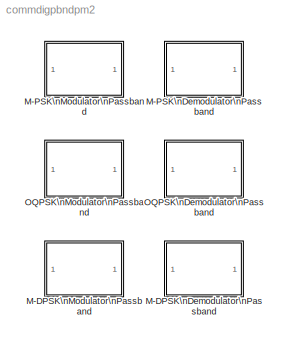
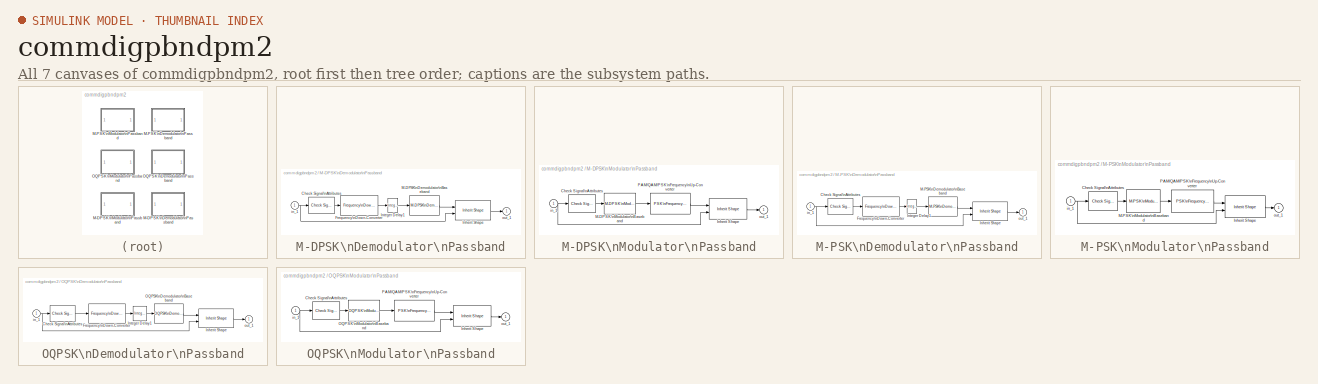
[diagram: thumbnail index - all 7 canvases of the model, root first then tree order]
MODEL commdigpbndpm2
KIND library
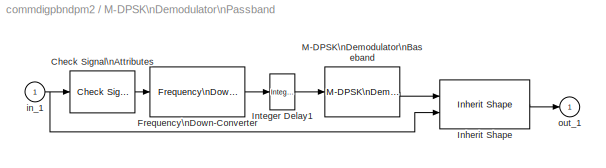
BLOCK [SubSystem] M-DPSK\nDemodulator\nPassband
  MaskCallbackString = |commblkpbndpskmod(gcb,'InType');||||||
  MaskDescription = Demodulate the input signal using the differential phase shift keying method.\n\nThe input signal must be a sample-based scalar. In case of bit output, the width of the output is the number of bits per symbol. The symbols can be either binary-demapped or Gray-demapped into bits.
  MaskDisplay = plot(0,0,100,100,[5+1.5*[[0:.8:10] [10:1.6:20] [20:.8:30]] 50 50 50 50+15*[0 1 1 2 2 3]],[85+10*[sin([0:.8:10]*pi*2/5) sin([10:1.6:20]*pi/5) sin([20:.8:30]*pi*2/5)] 85 99 75 85+8*[1 1 -1 -1 1 1]]);\ndisp('M-DPSK')
  MaskEnableString = on,on,off,on,on,on,on,on
  MaskHelp = helpview(commbhelp)
  MaskIconFrame = on
  MaskIconOpaque = on
  MaskIconRotate = none
  MaskIconUnits = autoscale
  MaskInitialization = commblkdyampmdemod('M-DPSK Demodulator Baseband','update');\ncommblkpbndpskmod(gcb,'init');\n
  MaskPromptString = M-ary number:|Output type:|Constellation ordering:|Symbol periodl (s):|Baseband samples per symbol:|Carrier frequency (Hz):|Carrier initial phase (rad):|Input sample time (s):
  MaskSelfModifiable = on
  MaskStyleString = edit,popup(Bit|Integer),popup(Binary|Gray),edit,edit,edit,edit,edit
  MaskToolTipString = on,on,on,on,on,on,on,on
  MaskTunableValueString = off,off,off,off,off,off,off,off
  MaskType = M-DPSK Demodulator Passband
  MaskValueString = 8|Integer|Binary|1/100|1|3000|pi/8|1/8000
  MaskVarAliasString = ,,,,,,,
  MaskVariables = M=@1;OutType=@2;Dec=@3;td=@4;numSamp=@5;Fc=@6;Ph=@7;InSamp=@8;
  MaskVisibilityString = on,on,on,on,on,on,on,on
  Ports = [1, 1]
  TreatAsAtomicUnit = off
BLOCK [Reference] M-DPSK\nDemodulator\nPassband/Check Signal\nAttributes  REF=dspsigattribs/Check Signal\nAttributes
  Complexity = Ignore
  DatatypeCheckMethod = Ignore
  DatatypeGeneral = Boolean
  Dimensions = 1-D
  DimsCheckMethod = Ignore
  DtypeFixedSpecific = Any fixed-point
  DtypeFloatSpecific = Any floating-point
  DtypeIntSpecific = Any integer
  Frame = Frame-based
  Ports = [1, 1]
  SampleMode = Ignore
  SigAttribCheckMethod = Matches attributes exactly
  SourceBlock = dspsigattribs/Check Signal\nAttributes
  SourceType = Check Signal Attributes
BLOCK [Reference] M-DPSK\nDemodulator\nPassband/Frequency\nDown-Converter  REF=commblksprivate/Frequency\nDown-Converter
  Fc = Fc
  Ph = Ph
  Ports = [1, 1]
  SourceBlock = commblksprivate/Frequency\nDown-Converter
  SourceType = Frequency down-converter
  Tin = InSamp
  Tout = td/numSamp
BLOCK [Reference] M-DPSK\nDemodulator\nPassband/Inherit Shape  REF=commblksprivate/Inherit Shape
  Ports = [2, 1]
  SourceBlock = commblksprivate/Inherit Shape
  SourceType = Inherit Shape
BLOCK [Reference] M-DPSK\nDemodulator\nPassband/Integer Delay1  REF=dspsigops/Integer Delay
  Ports = [1, 1]
  SourceBlock = dspsigops/Integer Delay
  SourceType = Integer Delay
  delay = numSamp-1
  ic = 0
BLOCK [Reference] M-DPSK\nDemodulator\nPassband/M-DPSK\nDemodulator\nBaseband  REF=commdigbbndpm2/M-DPSK\nDemodulator\nBaseband
  Dec = Binary
  M = M
  OutType = Integer
  Ph = 0
  Ports = [1, 1]
  SourceBlock = commdigbbndpm2/M-DPSK\nDemodulator\nBaseband
  SourceType = M-DPSK Demodulator Baseband
  numSamp = numSamp
BLOCK [Inport] M-DPSK\nDemodulator\nPassband/in_1
BLOCK [Outport] M-DPSK\nDemodulator\nPassband/out_1
  InitialOutput = 0
BLOCK [SubSystem] M-DPSK\nModulator\nPassband
  MaskCallbackString = |commblkpbndpskmod(gcb,'InType');||||||
  MaskDescription = Modulate the input signal using the differential phase shift keying method.\n\nThe input signal must be sample-based. In case of integer input, the input must be a scalar. In case of bit input, the width of the input must equal the number of bits per symbol. The bits can be either binary-mapped or Gray-mapped into symbols.\n\nThe input sample time must equal the symbol period.
  MaskDisplay = plot(0,0,100,100,[5+15*[0 1 1 2 2 3] 50 50 50 50+1.5*[[0:.8:10] [10:1.6:20] [20:.8:30]]],[85+8*[1 1 -1 -1 1 1] 85 99 75 85+10*[sin([0:.8:10]*pi*2/5) sin([10:1.6:20]*pi/5) sin([20:.8:30]*pi*2/5)]]);\ndisp('M-DPSK')
  MaskEnableString = on,on,off,on,on,on,on,on
  MaskHelp = helpview(commbhelp)
  MaskIconFrame = on
  MaskIconOpaque = on
  MaskIconRotate = none
  MaskIconUnits = autoscale
  MaskInitialization = commblkdyampmmod('M-DPSK Modulator Baseband','update');\ncommblkpbndpskmod(gcb,'init');\n
  MaskPromptString = M-ary number:|Input type:|Constellation ordering:|Symbol period (s):|Baseband samples per symbol:|Carrier frequency (Hz):|Carrier initial phase (rad):|Output sample time (s):
  MaskSelfModifiable = on
  MaskStyleString = edit,popup(Bit|Integer),popup(Binary|Gray),edit,edit,edit,edit,edit
  MaskToolTipString = on,on,on,on,on,on,on,on
  MaskTunableValueString = off,off,off,off,off,off,off,off
  MaskType = M-DPSK Modulator Passband
  MaskValueString = 8|Integer|Binary|1/100|1|3000|pi/8|1/8000
  MaskVarAliasString = ,,,,,,,
  MaskVariables = M=@1;InType=@2;Enc=@3;td=@4;numSamp=@5;Fc=@6;Ph=@7;OutSamp=@8;
  MaskVisibilityString = on,on,on,on,on,on,on,on
  Ports = [1, 1]
  TreatAsAtomicUnit = off
BLOCK [Reference] M-DPSK\nModulator\nPassband/Check Signal\nAttributes  REF=dspsigattribs/Check Signal\nAttributes
  Complexity = Ignore
  DatatypeCheckMethod = Ignore
  DatatypeGeneral = Boolean
  Dimensions = 1-D
  DimsCheckMethod = Ignore
  DtypeFixedSpecific = Any fixed-point
  DtypeFloatSpecific = Any floating-point
  DtypeIntSpecific = Any integer
  Frame = Frame-based
  Ports = [1, 1]
  SampleMode = Ignore
  SigAttribCheckMethod = Matches attributes exactly
  SourceBlock = dspsigattribs/Check Signal\nAttributes
  SourceType = Check Signal Attributes
BLOCK [Reference] M-DPSK\nModulator\nPassband/Inherit Shape  REF=commblksprivate/Inherit Shape
  Ports = [2, 1]
  SourceBlock = commblksprivate/Inherit Shape
  SourceType = Inherit Shape
BLOCK [Reference] M-DPSK\nModulator\nPassband/M-DPSK\nModulator\nBaseband  REF=commdigbbndpm2/M-DPSK\nModulator\nBaseband
  Enc = Binary
  InType = Integer
  M = M
  Ph = 0
  Ports = [1, 1]
  SourceBlock = commdigbbndpm2/M-DPSK\nModulator\nBaseband
  SourceType = M-DPSK Modulator Baseband
  numSamp = numSamp
BLOCK [Reference] M-DPSK\nModulator\nPassband/PAM//QAM//PSK\nFrequency\nUp-Converter  REF=commblksprivate/PAM//QAM//PSK\nFrequency\nUp-Converter
  Fc = Fc
  Ph = Ph
  Ports = [1, 1]
  SourceBlock = commblksprivate/PAM//QAM//PSK\nFrequency\nUp-Converter
  SourceType = PAM/QAM/PSK Frequency Up-Converter
  Tin = td/numSamp
  Tout = OutSamp
BLOCK [Inport] M-DPSK\nModulator\nPassband/in_1
BLOCK [Outport] M-DPSK\nModulator\nPassband/out_1
  InitialOutput = 0
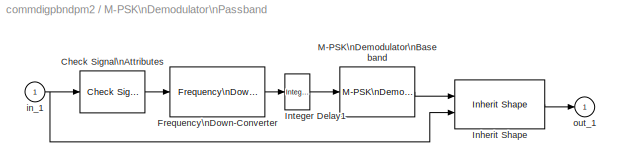
BLOCK [SubSystem] M-PSK\nDemodulator\nPassband
  MaskCallbackString = |commblkpbndpskmod(gcb,'InType');||||||
  MaskDescription = Demodulate the input signal using the phase shift keying method.\n\nThe input signal must be a sample-based scalar. In case of bit output, the width of the output is the number of bits per symbol. The symbols can be either binary-demapped or Gray-demapped into bits.
  MaskDisplay = plot(0,0,100,100,[5+1.5*[[0:.8:10] [10:1.6:20] [20:.8:30]] 50 50 50 50+15*[0 1 1 2 2 3]],[85+10*[sin([0:.8:10]*pi*2/5) sin([10:1.6:20]*pi/5) sin([20:.8:30]*pi*2/5)] 85 99 75 85+8*[1 1 -1 -1 1 1]]);\ndisp('M-PSK')
  MaskEnableString = on,on,off,on,on,on,on,on
  MaskHelp = helpview(commbhelp)
  MaskIconFrame = on
  MaskIconOpaque = on
  MaskIconRotate = none
  MaskIconUnits = autoscale
  MaskInitialization = commblkdyampmdemod('M-PSK Demodulator Baseband','update');\ncommblkpbndpskmod(gcb,'init');\n
  MaskPromptString = M-ary number:|Output type:|Constellation ordering:|Symbol period (s):|Baseband samples per symbol:|Carrier frequency (Hz):|Carrier initial phase (rad):|Input sample time (s):
  MaskSelfModifiable = on
  MaskStyleString = edit,popup(Bit|Integer),popup(Binary|Gray),edit,edit,edit,edit,edit
  MaskToolTipString = on,on,on,on,on,on,on,on
  MaskTunableValueString = off,off,off,off,off,off,off,off
  MaskType = M-PSK Demodulator Passband
  MaskValueString = 8|Integer|Binary|1/100|1|3000|pi/8|1/8000
  MaskVarAliasString = ,,,,,,,
  MaskVariables = M=@1;OutType=@2;Dec=@3;td=@4;numSamp=@5;Fc=@6;Ph=@7;InSamp=@8;
  MaskVisibilityString = on,on,on,on,on,on,on,on
  Ports = [1, 1]
  TreatAsAtomicUnit = off
BLOCK [Reference] M-PSK\nDemodulator\nPassband/Check Signal\nAttributes  REF=dspsigattribs/Check Signal\nAttributes
  Complexity = Ignore
  DatatypeCheckMethod = Ignore
  DatatypeGeneral = Boolean
  Dimensions = 1-D
  DimsCheckMethod = Ignore
  DtypeFixedSpecific = Any fixed-point
  DtypeFloatSpecific = Any floating-point
  DtypeIntSpecific = Any integer
  Frame = Frame-based
  Ports = [1, 1]
  SampleMode = Ignore
  SigAttribCheckMethod = Matches attributes exactly
  SourceBlock = dspsigattribs/Check Signal\nAttributes
  SourceType = Check Signal Attributes
BLOCK [Reference] M-PSK\nDemodulator\nPassband/Frequency\nDown-Converter  REF=commblksprivate/Frequency\nDown-Converter
  Fc = Fc
  Ph = Ph
  Ports = [1, 1]
  SourceBlock = commblksprivate/Frequency\nDown-Converter
  SourceType = Frequency down-converter
  Tin = InSamp
  Tout = td/numSamp
BLOCK [Reference] M-PSK\nDemodulator\nPassband/Inherit Shape  REF=commblksprivate/Inherit Shape
  Ports = [2, 1]
  SourceBlock = commblksprivate/Inherit Shape
  SourceType = Inherit Shape
BLOCK [Reference] M-PSK\nDemodulator\nPassband/Integer Delay1  REF=dspsigops/Integer Delay
  Ports = [1, 1]
  SourceBlock = dspsigops/Integer Delay
  SourceType = Integer Delay
  delay = numSamp-1
  ic = 0
BLOCK [Reference] M-PSK\nDemodulator\nPassband/M-PSK\nDemodulator\nBaseband  REF=commdigbbndpm2/M-PSK\nDemodulator\nBaseband
  Dec = Binary
  M = M
  OutType = Integer
  Ph = 0
  Ports = [1, 1]
  SourceBlock = commdigbbndpm2/M-PSK\nDemodulator\nBaseband
  SourceType = M-PSK Demodulator Baseband
  numSamp = numSamp
BLOCK [Inport] M-PSK\nDemodulator\nPassband/in_1
BLOCK [Outport] M-PSK\nDemodulator\nPassband/out_1
  InitialOutput = 0
BLOCK [SubSystem] M-PSK\nModulator\nPassband
  MaskCallbackString = |commblkpbndpskmod(gcb,'InType');||||||
  MaskDescription = Modulate the input signal using the phase shift keying method. \n\nThe input signal must be sample-based. In case of integer input, the input must be a scalar. In case of bit input, the width of the input must equal the number of bits per symbol. The bits can be either binary-mapped or Gray-mapped into symbols.\n\nThe input sample time must equal the symbol period.
  MaskDisplay = plot(0,0,100,100,[5+15*[0 1 1 2 2 3] 50 50 50 50+1.5*[[0:.8:10] [10:1.6:20] [20:.8:30]]],[85+8*[1 1 -1 -1 1 1] 85 99 75 85+10*[sin([0:.8:10]*pi*2/5) sin([10:1.6:20]*pi/5) sin([20:.8:30]*pi*2/5)]]);\ndisp('M-PSK')
  MaskEnableString = on,on,off,on,on,on,on,on
  MaskHelp = helpview(commbhelp)
  MaskIconFrame = on
  MaskIconOpaque = on
  MaskIconRotate = none
  MaskIconUnits = autoscale
  MaskInitialization = commblkdyampmmod('M-PSK Modulator Baseband','update');\ncommblkpbndpskmod(gcb,'init');\n
  MaskPromptString = M-ary number:|Input type:|Constellation ordering:|Symbol period (s):|Baseband samples per symbol:|Carrier frequency (Hz):|Carrier initial phase (rad):|Output sample time (s):
  MaskSelfModifiable = on
  MaskStyleString = edit,popup(Bit|Integer),popup(Binary|Gray),edit,edit,edit,edit,edit
  MaskToolTipString = on,on,on,on,on,on,on,on
  MaskTunableValueString = off,off,off,off,off,off,off,off
  MaskType = M-PSK Modulator Passband
  MaskValueString = 8|Integer|Binary|1/100|1|3000|pi/8|1/8000
  MaskVarAliasString = ,,,,,,,
  MaskVariables = M=@1;InType=@2;Enc=@3;td=@4;numSamp=@5;Fc=@6;Ph=@7;OutSamp=@8;
  MaskVisibilityString = on,on,on,on,on,on,on,on
  Ports = [1, 1]
  TreatAsAtomicUnit = off
BLOCK [Reference] M-PSK\nModulator\nPassband/Check Signal\nAttributes  REF=dspsigattribs/Check Signal\nAttributes
  Complexity = Ignore
  DatatypeCheckMethod = Ignore
  DatatypeGeneral = Boolean
  Dimensions = 1-D
  DimsCheckMethod = Ignore
  DtypeFixedSpecific = Any fixed-point
  DtypeFloatSpecific = Any floating-point
  DtypeIntSpecific = Any integer
  Frame = Frame-based
  Ports = [1, 1]
  SampleMode = Ignore
  SigAttribCheckMethod = Matches attributes exactly
  SourceBlock = dspsigattribs/Check Signal\nAttributes
  SourceType = Check Signal Attributes
BLOCK [Reference] M-PSK\nModulator\nPassband/Inherit Shape  REF=commblksprivate/Inherit Shape
  Ports = [2, 1]
  SourceBlock = commblksprivate/Inherit Shape
  SourceType = Inherit Shape
BLOCK [Reference] M-PSK\nModulator\nPassband/M-PSK\nModulator\nBaseband  REF=commdigbbndpm2/M-PSK\nModulator\nBaseband
  Enc = Binary
  InType = Integer
  M = M
  Ph = 0
  Ports = [1, 1]
  SourceBlock = commdigbbndpm2/M-PSK\nModulator\nBaseband
  SourceType = M-PSK Modulator Baseband
  numSamp = numSamp
BLOCK [Reference] M-PSK\nModulator\nPassband/PAM//QAM//PSK\nFrequency\nUp-Converter  REF=commblksprivate/PAM//QAM//PSK\nFrequency\nUp-Converter
  Fc = Fc
  Ph = Ph
  Ports = [1, 1]
  SourceBlock = commblksprivate/PAM//QAM//PSK\nFrequency\nUp-Converter
  SourceType = PAM/QAM/PSK Frequency Up-Converter
  Tin = td/numSamp
  Tout = OutSamp
BLOCK [Inport] M-PSK\nModulator\nPassband/in_1
BLOCK [Outport] M-PSK\nModulator\nPassband/out_1
  InitialOutput = 0
BLOCK [SubSystem] OQPSK\nDemodulator\nPassband
  MaskCallbackString = |||||
  MaskDescription = Demodulate an offset quadrature phase shift keying modulated signal.\n\nThe input signal must be a sample-based scalar. In case of bit output, the width of the output is two.
  MaskDisplay = plot(0,0,100,100,[5+1.5*[[0:.8:10] [10:1.6:20] [20:.8:30]] 50 50 50 50+15*[0 1 1 2 2 3]],[85+10*[sin([0:.8:10]*pi*2/5) sin([10:1.6:20]*pi/5) sin([20:.8:30]*pi*2/5)] 85 99 75 85+8*[1 1 -1 -1 1 1]]);\ndisp('OQPSK')
  MaskEnableString = on,on,on,on,on,on
  MaskHelp = helpview(commbhelp)
  MaskIconFrame = on
  MaskIconOpaque = on
  MaskIconRotate = none
  MaskIconUnits = autoscale
  MaskInitialization = commblkdyampmdemod('OQPSK Demodulator Baseband','update');\n
  MaskPromptString = Output type:|Symbol period (s):|Baseband samples per symbol:|Carrier frequency (Hz):|Carrier initial phase (rad):|Input sample time (s):
  MaskSelfModifiable = on
  MaskStyleString = popup(Bit|Integer),edit,edit,edit,edit,edit
  MaskToolTipString = on,on,on,on,on,on
  MaskTunableValueString = on,on,on,on,on,on
  MaskType = OQPSK Demodulator Passband
  MaskValueString = Integer|1/100|7|3000|0|1/10000
  MaskVarAliasString = ,,,,,
  MaskVariables = OutType=@1;td=@2;numSamp=@3;Fc=@4;Ph=@5;InSamp=@6;
  MaskVisibilityString = on,on,on,on,on,on
  Ports = [1, 1]
  TreatAsAtomicUnit = off
BLOCK [Reference] OQPSK\nDemodulator\nPassband/Check Signal\nAttributes  REF=dspsigattribs/Check Signal\nAttributes
  Complexity = Ignore
  DatatypeCheckMethod = Ignore
  DatatypeGeneral = Boolean
  Dimensions = 1-D
  DimsCheckMethod = Ignore
  DtypeFixedSpecific = Any fixed-point
  DtypeFloatSpecific = Any floating-point
  DtypeIntSpecific = Any integer
  Frame = Frame-based
  Ports = [1, 1]
  SampleMode = Ignore
  SigAttribCheckMethod = Matches attributes exactly
  SourceBlock = dspsigattribs/Check Signal\nAttributes
  SourceType = Check Signal Attributes
BLOCK [Reference] OQPSK\nDemodulator\nPassband/Frequency\nDown-Converter  REF=commblksprivate/Frequency\nDown-Converter
  Fc = Fc
  Ph = Ph
  Ports = [1, 1]
  SourceBlock = commblksprivate/Frequency\nDown-Converter
  SourceType = Frequency down-converter
  Tin = InSamp
  Tout = td/(numSamp*2)
BLOCK [Reference] OQPSK\nDemodulator\nPassband/Inherit Shape  REF=commblksprivate/Inherit Shape
  Ports = [2, 1]
  SourceBlock = commblksprivate/Inherit Shape
  SourceType = Inherit Shape
BLOCK [Reference] OQPSK\nDemodulator\nPassband/Integer Delay1  REF=dspsigops/Integer Delay
  Ports = [1, 1]
  SourceBlock = dspsigops/Integer Delay
  SourceType = Integer Delay
  delay = 2*numSamp-1
  ic = 0
BLOCK [Reference] OQPSK\nDemodulator\nPassband/OQPSK\nDemodulator\nBaseband  REF=commdigbbndpm2/OQPSK\nDemodulator\nBaseband
  OutType = Integer
  Ph = 0
  Ports = [1, 1]
  SourceBlock = commdigbbndpm2/OQPSK\nDemodulator\nBaseband
  SourceType = OQPSK Demodulator Baseband
  numSamp = numSamp
BLOCK [Inport] OQPSK\nDemodulator\nPassband/in_1
BLOCK [Outport] OQPSK\nDemodulator\nPassband/out_1
  InitialOutput = 0
BLOCK [SubSystem] OQPSK\nModulator\nPassband
  MaskCallbackString = |||||
  MaskDescription = Modulate the input signal using offset quadrature phase shift keying method.\n\nThe input signal must be sample-based. In case of integer input, the input must be a scalar. In case of bit input, the width of the input must be two.\n\nThe input sample time must equal the symbol period.
  MaskDisplay = plot(0,0,100,100,[5+15*[0 1 1 2 2 3] 50 50 50 50+1.5*[[0:.8:10] [10:1.6:20] [20:.8:30]]],[85+8*[1 1 -1 -1 1 1] 85 99 75 85+10*[sin([0:.8:10]*pi*2/5) sin([10:1.6:20]*pi/5) sin([20:.8:30]*pi*2/5)]]);\ndisp('OQPSK')
  MaskEnableString = on,on,on,on,on,on
  MaskHelp = helpview(commbhelp)
  MaskIconFrame = on
  MaskIconOpaque = on
  MaskIconRotate = none
  MaskIconUnits = autoscale
  MaskInitialization = commblkdyampmmod('OQPSK Modulator Baseband','update');\n
  MaskPromptString = Input type:|Symbol period (s):|Baseband samples per symbol:|Carrier frequency (Hz):|Carrier initial phase (rad):|Output sample time (s):
  MaskSelfModifiable = on
  MaskStyleString = popup(Bit|Integer),edit,edit,edit,edit,edit
  MaskToolTipString = on,on,on,on,on,on
  MaskTunableValueString = on,on,on,on,on,on
  MaskType = OQPSK Modulator Passband
  MaskValueString = Integer|1/100|7|3000|0|1/10000
  MaskVarAliasString = ,,,,,
  MaskVariables = InType=@1;td=@2;numSamp=@3;Fc=@4;Ph=@5;OutSamp=@6;
  MaskVisibilityString = on,on,on,on,on,on
  Ports = [1, 1]
  TreatAsAtomicUnit = off
BLOCK [Reference] OQPSK\nModulator\nPassband/Check Signal\nAttributes  REF=dspsigattribs/Check Signal\nAttributes
  Complexity = Ignore
  DatatypeCheckMethod = Ignore
  DatatypeGeneral = Boolean
  Dimensions = 1-D
  DimsCheckMethod = Ignore
  DtypeFixedSpecific = Any fixed-point
  DtypeFloatSpecific = Any floating-point
  DtypeIntSpecific = Any integer
  Frame = Frame-based
  Ports = [1, 1]
  SampleMode = Ignore
  SigAttribCheckMethod = Matches attributes exactly
  SourceBlock = dspsigattribs/Check Signal\nAttributes
  SourceType = Check Signal Attributes
BLOCK [Reference] OQPSK\nModulator\nPassband/Inherit Shape  REF=commblksprivate/Inherit Shape
  Ports = [2, 1]
  SourceBlock = commblksprivate/Inherit Shape
  SourceType = Inherit Shape
BLOCK [Reference] OQPSK\nModulator\nPassband/OQPSK\nModulator\nBaseband  REF=commdigbbndpm2/OQPSK\nModulator\nBaseband
  InType = Integer
  Ph = 0
  Ports = [1, 1]
  SourceBlock = commdigbbndpm2/OQPSK\nModulator\nBaseband
  SourceType = OQPSK Modulator Baseband
  numSamp = numSamp
BLOCK [Reference] OQPSK\nModulator\nPassband/PAM//QAM//PSK\nFrequency\nUp-Converter  REF=commblksprivate/PAM//QAM//PSK\nFrequency\nUp-Converter
  Fc = Fc
  Ph = Ph
  Ports = [1, 1]
  SourceBlock = commblksprivate/PAM//QAM//PSK\nFrequency\nUp-Converter
  SourceType = PAM/QAM/PSK Frequency Up-Converter
  Tin = td/(numSamp*2)
  Tout = OutSamp
BLOCK [Inport] OQPSK\nModulator\nPassband/in_1
BLOCK [Outport] OQPSK\nModulator\nPassband/out_1
  InitialOutput = 0
LINE M-DPSK\nDemodulator\nPassband/Check Signal\nAttributes:1 -> M-DPSK\nDemodulator\nPassband/Frequency\nDown-Converter:1
LINE M-DPSK\nDemodulator\nPassband/Frequency\nDown-Converter:1 -> M-DPSK\nDemodulator\nPassband/Integer Delay1:1
LINE M-DPSK\nDemodulator\nPassband/Inherit Shape:1 -> M-DPSK\nDemodulator\nPassband/out_1:1
LINE M-DPSK\nDemodulator\nPassband/Integer Delay1:1 -> M-DPSK\nDemodulator\nPassband/M-DPSK\nDemodulator\nBaseband:1
LINE M-DPSK\nDemodulator\nPassband/M-DPSK\nDemodulator\nBaseband:1 -> M-DPSK\nDemodulator\nPassband/Inherit Shape:1
NET M-DPSK\nDemodulator\nPassband/in_1:1 -> M-DPSK\nDemodulator\nPassband/Check Signal\nAttributes:1, M-DPSK\nDemodulator\nPassband/Inherit Shape:2
LINE M-DPSK\nModulator\nPassband/Check Signal\nAttributes:1 -> M-DPSK\nModulator\nPassband/M-DPSK\nModulator\nBaseband:1
LINE M-DPSK\nModulator\nPassband/Inherit Shape:1 -> M-DPSK\nModulator\nPassband/out_1:1
LINE M-DPSK\nModulator\nPassband/M-DPSK\nModulator\nBaseband:1 -> M-DPSK\nModulator\nPassband/PAM//QAM//PSK\nFrequency\nUp-Converter:1
LINE M-DPSK\nModulator\nPassband/PAM//QAM//PSK\nFrequency\nUp-Converter:1 -> M-DPSK\nModulator\nPassband/Inherit Shape:1
NET M-DPSK\nModulator\nPassband/in_1:1 -> M-DPSK\nModulator\nPassband/Check Signal\nAttributes:1, M-DPSK\nModulator\nPassband/Inherit Shape:2
LINE M-PSK\nDemodulator\nPassband/Check Signal\nAttributes:1 -> M-PSK\nDemodulator\nPassband/Frequency\nDown-Converter:1
LINE M-PSK\nDemodulator\nPassband/Frequency\nDown-Converter:1 -> M-PSK\nDemodulator\nPassband/Integer Delay1:1
LINE M-PSK\nDemodulator\nPassband/Inherit Shape:1 -> M-PSK\nDemodulator\nPassband/out_1:1
LINE M-PSK\nDemodulator\nPassband/Integer Delay1:1 -> M-PSK\nDemodulator\nPassband/M-PSK\nDemodulator\nBaseband:1
LINE M-PSK\nDemodulator\nPassband/M-PSK\nDemodulator\nBaseband:1 -> M-PSK\nDemodulator\nPassband/Inherit Shape:1
NET M-PSK\nDemodulator\nPassband/in_1:1 -> M-PSK\nDemodulator\nPassband/Check Signal\nAttributes:1, M-PSK\nDemodulator\nPassband/Inherit Shape:2
LINE M-PSK\nModulator\nPassband/Check Signal\nAttributes:1 -> M-PSK\nModulator\nPassband/M-PSK\nModulator\nBaseband:1
LINE M-PSK\nModulator\nPassband/Inherit Shape:1 -> M-PSK\nModulator\nPassband/out_1:1
LINE M-PSK\nModulator\nPassband/M-PSK\nModulator\nBaseband:1 -> M-PSK\nModulator\nPassband/PAM//QAM//PSK\nFrequency\nUp-Converter:1
LINE M-PSK\nModulator\nPassband/PAM//QAM//PSK\nFrequency\nUp-Converter:1 -> M-PSK\nModulator\nPassband/Inherit Shape:1
NET M-PSK\nModulator\nPassband/in_1:1 -> M-PSK\nModulator\nPassband/Check Signal\nAttributes:1, M-PSK\nModulator\nPassband/Inherit Shape:2
LINE OQPSK\nDemodulator\nPassband/Check Signal\nAttributes:1 -> OQPSK\nDemodulator\nPassband/Frequency\nDown-Converter:1
LINE OQPSK\nDemodulator\nPassband/Frequency\nDown-Converter:1 -> OQPSK\nDemodulator\nPassband/Integer Delay1:1
LINE OQPSK\nDemodulator\nPassband/Inherit Shape:1 -> OQPSK\nDemodulator\nPassband/out_1:1
LINE OQPSK\nDemodulator\nPassband/Integer Delay1:1 -> OQPSK\nDemodulator\nPassband/OQPSK\nDemodulator\nBaseband:1
LINE OQPSK\nDemodulator\nPassband/OQPSK\nDemodulator\nBaseband:1 -> OQPSK\nDemodulator\nPassband/Inherit Shape:1
NET OQPSK\nDemodulator\nPassband/in_1:1 -> OQPSK\nDemodulator\nPassband/Check Signal\nAttributes:1, OQPSK\nDemodulator\nPassband/Inherit Shape:2
LINE OQPSK\nModulator\nPassband/Check Signal\nAttributes:1 -> OQPSK\nModulator\nPassband/OQPSK\nModulator\nBaseband:1
LINE OQPSK\nModulator\nPassband/Inherit Shape:1 -> OQPSK\nModulator\nPassband/out_1:1
LINE OQPSK\nModulator\nPassband/OQPSK\nModulator\nBaseband:1 -> OQPSK\nModulator\nPassband/PAM//QAM//PSK\nFrequency\nUp-Converter:1
LINE OQPSK\nModulator\nPassband/PAM//QAM//PSK\nFrequency\nUp-Converter:1 -> OQPSK\nModulator\nPassband/Inherit Shape:1
NET OQPSK\nModulator\nPassband/in_1:1 -> OQPSK\nModulator\nPassband/Check Signal\nAttributes:1, OQPSK\nModulator\nPassband/Inherit Shape:2
note: NET lines group one-source signal fan-out (src -> all destinations, sorted); 1:1 wires keep LINE
